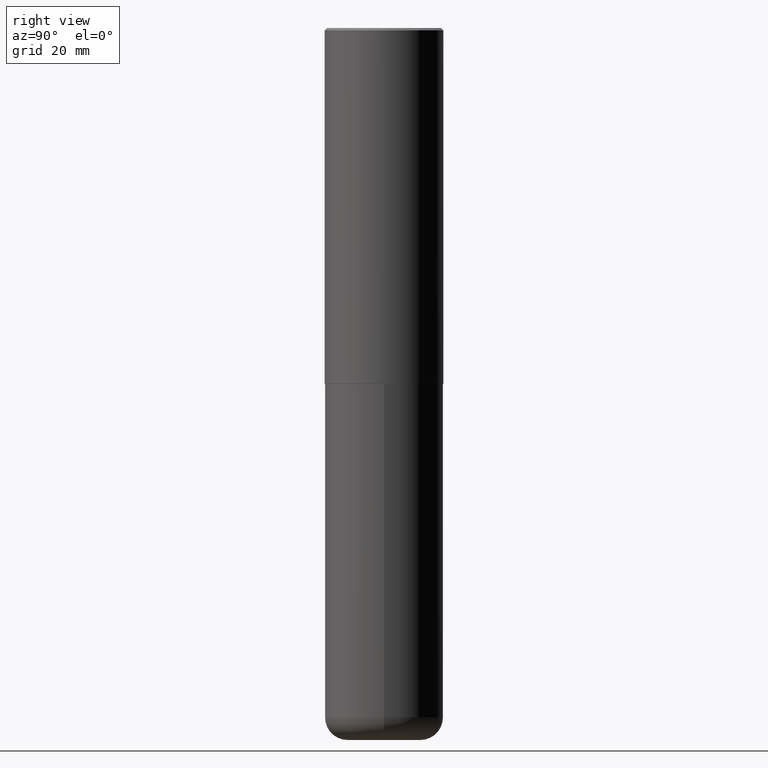
[diagram: clean part render]
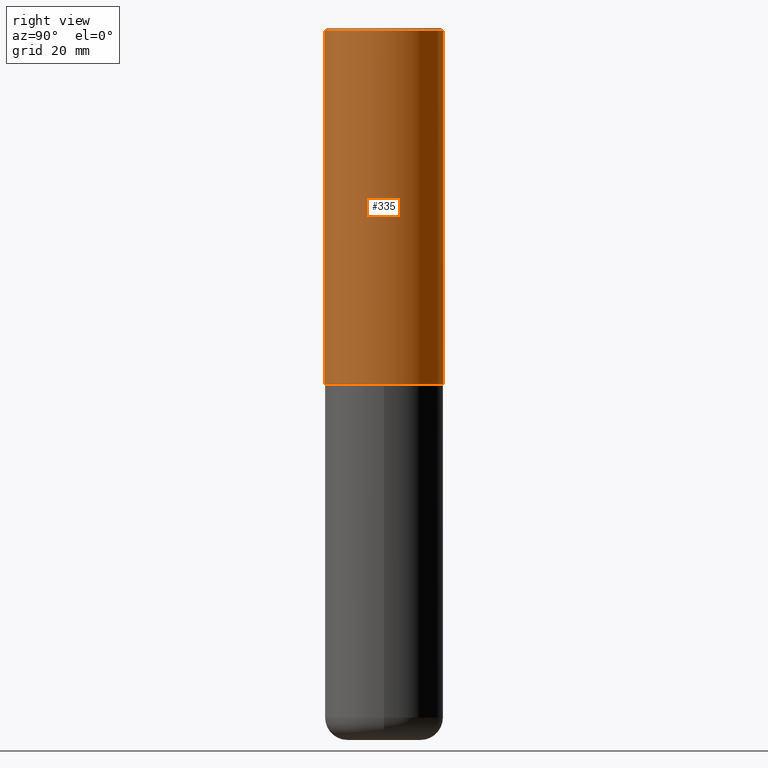
[diagram: same view with one face highlighted and labeled with its STEP entity id]
A machine part, right view. The second image highlights one B-rep face of the part: STEP entity #335.
In plain terms, the highlighted cylindrical surface (partial cylindrical patch) has radius 12.7 mm, axis along (-0, 0, 1).
Its self-contained STEP definition (entity closure, byte-faithful):
#4 = VECTOR ( 'NONE', #203, 39.37007874015748143 ) ;
#11 = DIRECTION ( 'NONE',  ( -2.444898033699712212E-29, 3.492298717528625990E-15, 1.000000000000000000 ) ) ;
#13 = VERTEX_POINT ( 'NONE', #49 ) ;
#14 = CARTESIAN_POINT ( 'NONE',  ( 3.552713678800501718E-15, 0.5000000000000001110, -1.746149358764313390E-15 ) ) ;
#28 = FACE_OUTER_BOUND ( 'NONE', #191, .T. ) ;
#35 = CARTESIAN_POINT ( 'NONE',  ( -3.491481338843133750E-15, -0.5000000000000001110, 1.746149358764313390E-15 ) ) ;
#45 = AXIS2_PLACEMENT_3D ( 'NONE', #153, #278, #311 ) ;
#49 = CARTESIAN_POINT ( 'NONE',  ( 3.552713678800539584E-15, 0.4999999999999898970, -2.999000000000001886 ) ) ;
#72 = ORIENTED_EDGE ( 'NONE', *, *, #393, .T. ) ;
#73 = LINE ( 'NONE', #14, #4 ) ;
#99 = ORIENTED_EDGE ( 'NONE', *, *, #256, .F. ) ;
#109 = CARTESIAN_POINT ( 'NONE',  ( 3.491481338843133355E-15, 0.4999999999999999445, -0.02000000000000185310 ) ) ;
#111 = CIRCLE ( 'NONE', #45, 0.5000000000000000000 ) ;
#146 = VERTEX_POINT ( 'NONE', #109 ) ;
#153 = CARTESIAN_POINT ( 'NONE',  ( 4.889796067399450837E-31, -6.984597435057287381E-17, -0.02000000000000010797 ) ) ;
#157 = CYLINDRICAL_SURFACE ( 'NONE', #207, 0.5000000000000001110 ) ;
#162 = ORIENTED_EDGE ( 'NONE', *, *, #272, .F. ) ;
#177 = CIRCLE ( 'NONE', #240, 0.5000000000000002220 ) ;
#191 = EDGE_LOOP ( 'NONE', ( #72, #382, #99, #162 ) ) ;
#193 = LINE ( 'NONE', #35, #310 ) ;
#203 = DIRECTION ( 'NONE',  ( -2.444898033699711931E-29, 3.492298717528626385E-15, 1.000000000000000000 ) ) ;
#207 = AXIS2_PLACEMENT_3D ( 'NONE', #283, #418, #414 ) ;
#215 = DIRECTION ( 'NONE',  ( -2.444898033699711931E-29, 3.492298717528626385E-15, 1.000000000000000000 ) ) ;
#240 = AXIS2_PLACEMENT_3D ( 'NONE', #324, #11, #359 ) ;
#256 = EDGE_CURVE ( 'NONE', #319, #146, #111, .T. ) ;
#268 = CARTESIAN_POINT ( 'NONE',  ( -3.491481338843061569E-15, -0.5000000000000107692, -2.998999999999998778 ) ) ;
#272 = EDGE_CURVE ( 'NONE', #352, #319, #193, .T. ) ;
#278 = DIRECTION ( 'NONE',  ( -2.444898033699712212E-29, 3.492298717528625990E-15, 1.000000000000000000 ) ) ;
#283 = CARTESIAN_POINT ( 'NONE',  ( 0.000000000000000000, 0.000000000000000000, 0.000000000000000000 ) ) ;
#310 = VECTOR ( 'NONE', #215, 39.37007874015748143 ) ;
#311 = DIRECTION ( 'NONE',  ( -6.982962677686265922E-15, -1.000000000000000000, 3.491643216902136408E-15 ) ) ;
#319 = VERTEX_POINT ( 'NONE', #347 ) ;
#324 = CARTESIAN_POINT ( 'NONE',  ( 7.332249203065438921E-29, -1.047340385386834930E-14, -2.999000000000000554 ) ) ;
#335 = ADVANCED_FACE ( 'NONE', ( #28 ), #157, .T. ) ;
#342 = EDGE_CURVE ( 'NONE', #13, #146, #73, .T. ) ;
#347 = CARTESIAN_POINT ( 'NONE',  ( -3.430248998885764992E-15, -0.5000000000000001110, -0.01999999999999835937 ) ) ;
#352 = VERTEX_POINT ( 'NONE', #268 ) ;
#359 = DIRECTION ( 'NONE',  ( -6.982962677686266711E-15, -1.000000000000000000, 3.278217592397114284E-15 ) ) ;
#382 = ORIENTED_EDGE ( 'NONE', *, *, #342, .T. ) ;
#393 = EDGE_CURVE ( 'NONE', #352, #13, #177, .T. ) ;
#414 = DIRECTION ( 'NONE',  ( -6.982962677686265922E-15, -1.000000000000000000, 3.492298717528625990E-15 ) ) ;
#418 = DIRECTION ( 'NONE',  ( -2.444898033699712212E-29, 3.492298717528625990E-15, 1.000000000000000000 ) ) ;